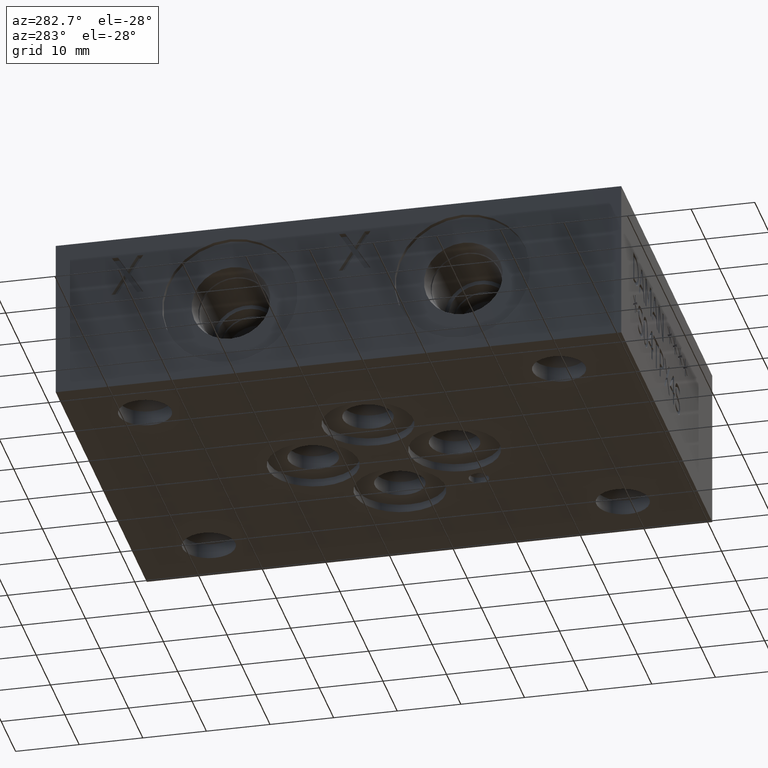
[diagram: clean part render]
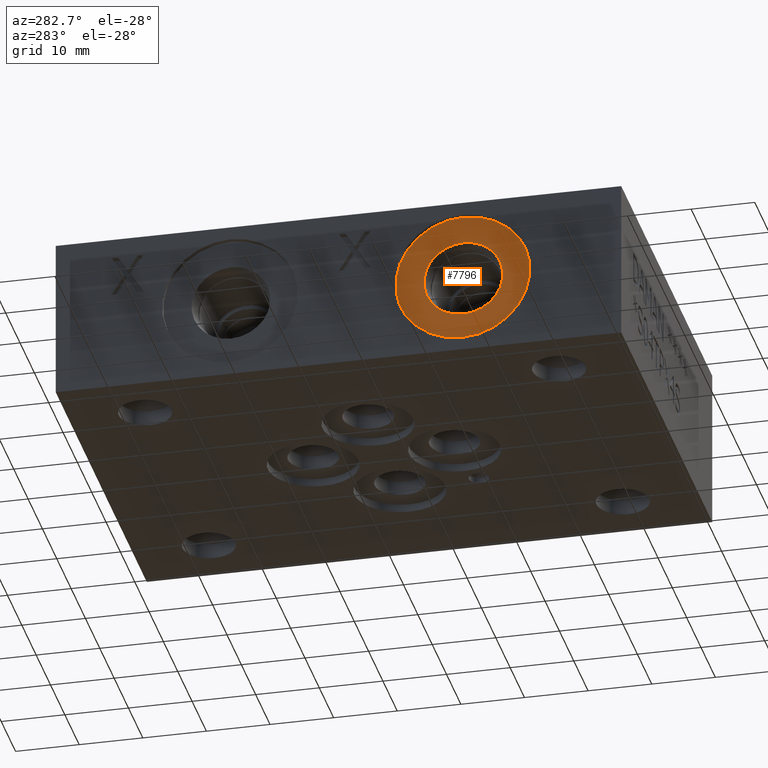
[diagram: same view with one face highlighted and labeled with its STEP entity id]
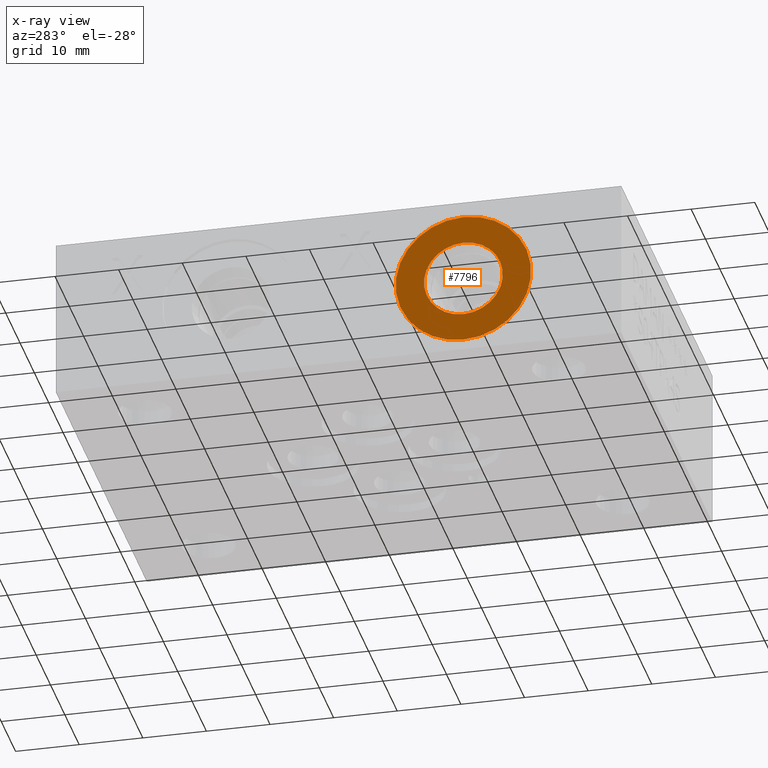
[diagram: x-ray of the same camera — body ghosted, the highlighted face saturated]
A machine part, auxiliary view. The second image highlights one B-rep face of the part: STEP entity #7796.
The next image is the same camera in x-ray: the body ghosted, the highlighted face saturated — about 0% of this face is hidden behind the body in this view.
In plain terms, the highlighted planar face has unit normal (1, 0, 0).
Its self-contained STEP definition (entity closure, byte-faithful):
#140=CIRCLE('',#8234,10.6426);
#141=CIRCLE('',#8235,10.6426);
#142=CIRCLE('',#8237,6.1976);
#143=CIRCLE('',#8238,6.1976);
#231=FACE_BOUND('',#1224,.T.);
#804=FACE_OUTER_BOUND('',#1223,.T.);
#1223=EDGE_LOOP('',(#6666,#6667));
#1224=EDGE_LOOP('',(#6668,#6669));
#3610=VERTEX_POINT('',#12881);
#3611=VERTEX_POINT('',#12883);
#3612=VERTEX_POINT('',#12887);
#3613=VERTEX_POINT('',#12888);
#4660=EDGE_CURVE('',#3610,#3611,#140,.T.);
#4661=EDGE_CURVE('',#3611,#3610,#141,.T.);
#4662=EDGE_CURVE('',#3612,#3613,#142,.T.);
#4663=EDGE_CURVE('',#3613,#3612,#143,.T.);
#6666=ORIENTED_EDGE('',*,*,#4661,.F.);
#6667=ORIENTED_EDGE('',*,*,#4660,.F.);
#6668=ORIENTED_EDGE('',*,*,#4662,.T.);
#6669=ORIENTED_EDGE('',*,*,#4663,.T.);
#7111=PLANE('',#8236);
#7796=ADVANCED_FACE('',(#804,#231),#7111,.F.);
#8234=AXIS2_PLACEMENT_3D('',#12884,#9889,#9890);
#8235=AXIS2_PLACEMENT_3D('',#12885,#9891,#9892);
#8236=AXIS2_PLACEMENT_3D('',#12886,#9893,#9894);
#8237=AXIS2_PLACEMENT_3D('',#12889,#9895,#9896);
#8238=AXIS2_PLACEMENT_3D('',#12890,#9897,#9898);
#9889=DIRECTION('center_axis',(1.,0.,0.));
#9890=DIRECTION('ref_axis',(0.,0.,-1.));
#9891=DIRECTION('center_axis',(1.,0.,0.));
#9892=DIRECTION('ref_axis',(0.,0.,-1.));
#9893=DIRECTION('center_axis',(1.,0.,0.));
#9894=DIRECTION('ref_axis',(0.,0.,-1.));
#9895=DIRECTION('center_axis',(1.,0.,0.));
#9896=DIRECTION('ref_axis',(0.,0.,-1.));
#9897=DIRECTION('center_axis',(1.,0.,0.));
#9898=DIRECTION('ref_axis',(0.,0.,-1.));
#12881=CARTESIAN_POINT('',(0.7874,24.9936,2.0574));
#12883=CARTESIAN_POINT('',(0.7874,24.9936,23.3426));
#12884=CARTESIAN_POINT('Origin',(0.7874,24.9936,12.7));
#12885=CARTESIAN_POINT('Origin',(0.7874,24.9936,12.7));
#12886=CARTESIAN_POINT('Origin',(0.7874,24.9936,18.8976));
#12887=CARTESIAN_POINT('',(0.7874,24.9936,18.8976));
#12888=CARTESIAN_POINT('',(0.787399999999999,24.9936,6.5024));
#12889=CARTESIAN_POINT('Origin',(0.7874,24.9936,12.7));
#12890=CARTESIAN_POINT('Origin',(0.7874,24.9936,12.7));